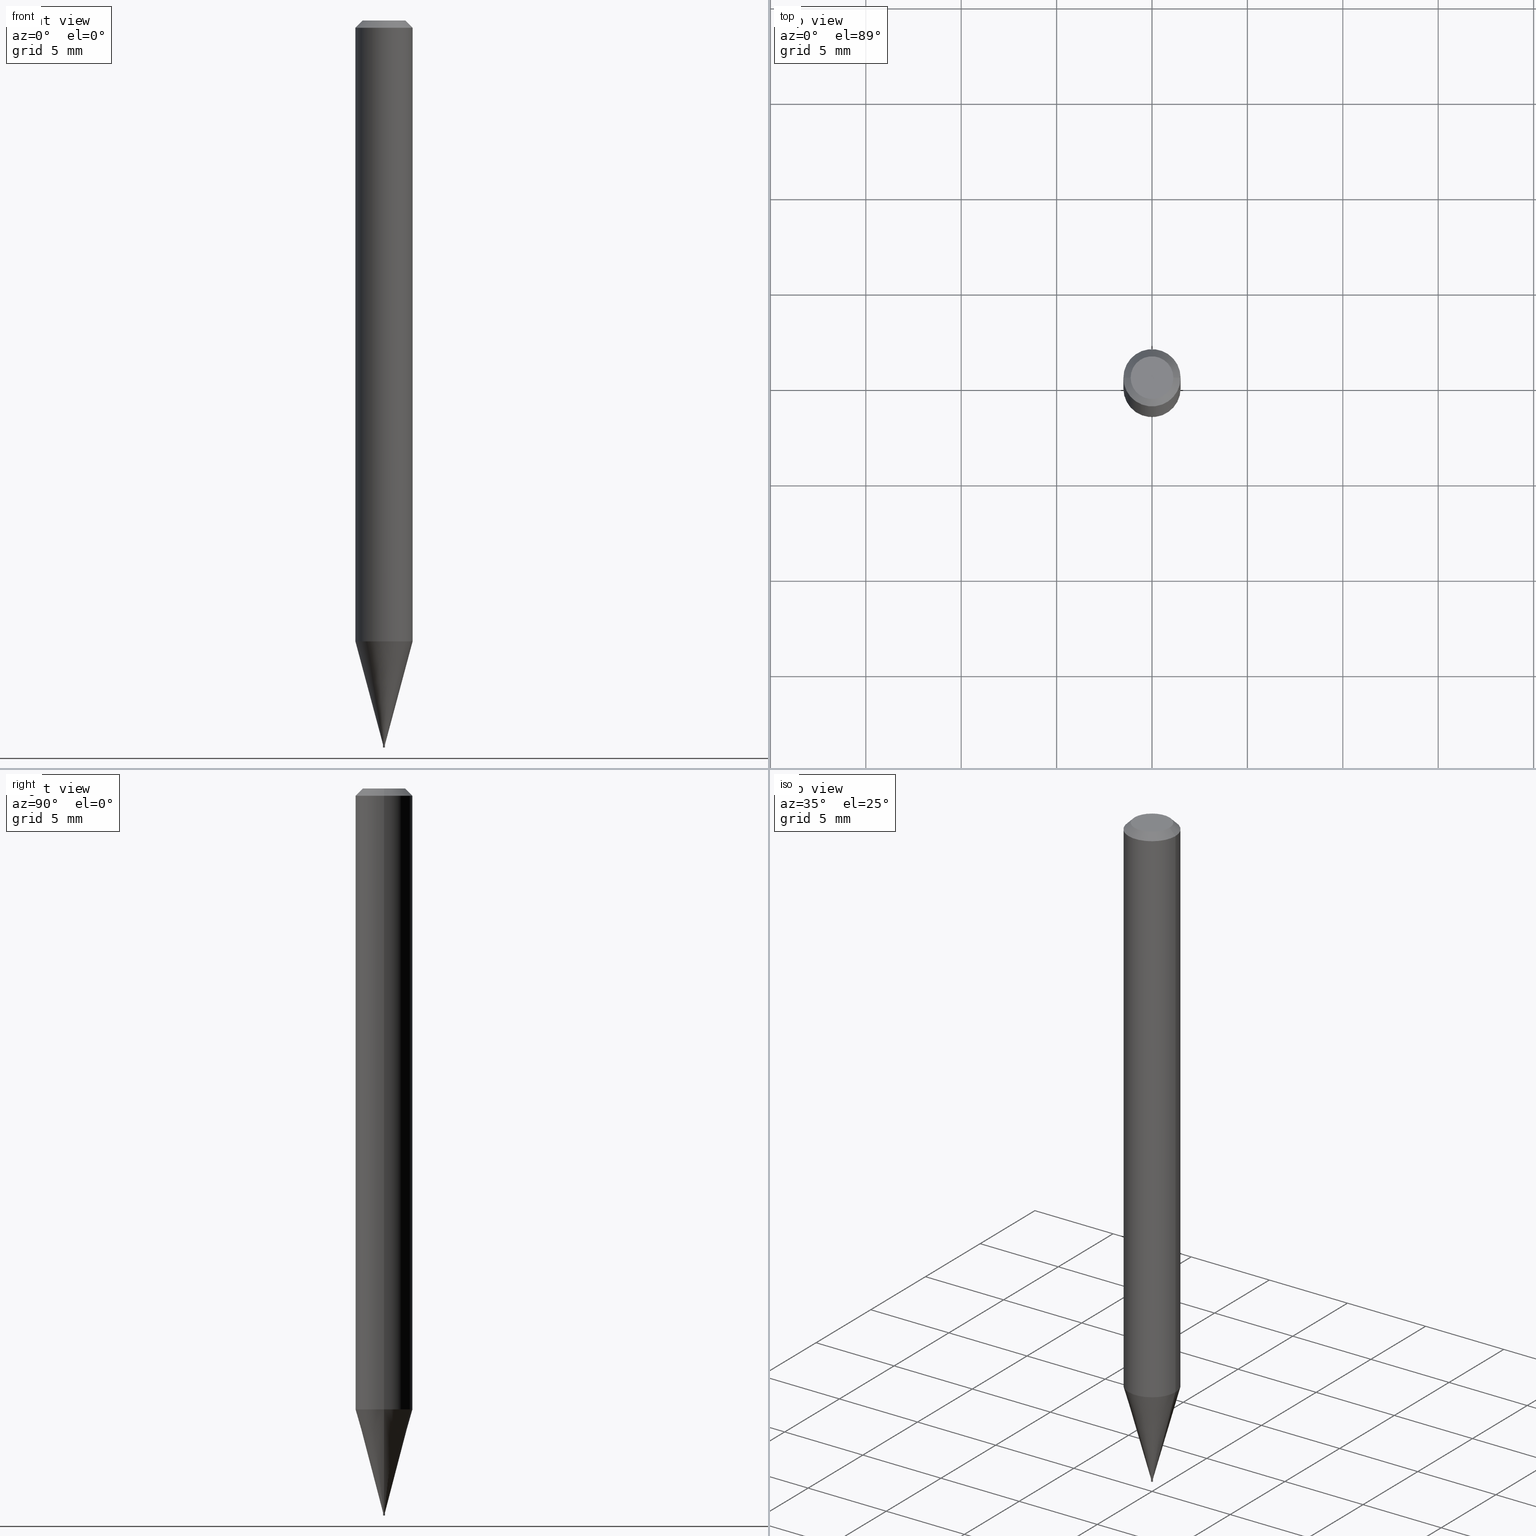
[diagram: canonical four-view strip — front | top / right | iso, engineering-drawing reading convention]
A machine part, canonical four-view strip (front | top / right | iso — engineering-drawing reading convention). The complete STEP part file that produces these views, byte-faithful:
ISO-10303-21;
HEADER;
FILE_DESCRIPTION (( 'STEP AP203' ),
    '1' );
FILE_NAME ('05000.STEP',
    '2024-03-14T17:35:58',
    ( '' ),
    ( '' ),
    'SwSTEP 2.0',
    'SolidWorks 2023',
    '' );
FILE_SCHEMA (( 'CONFIG_CONTROL_DESIGN' ));
ENDSEC;

DATA;
#1 = CYLINDRICAL_SURFACE ( 'NONE', #49, 0.001950000000000004030 ) ;
#2 = VERTEX_POINT ( 'NONE', #371 ) ;
#3 = DIRECTION ( 'NONE',  ( 1.000000000000000000, -6.982962677686144437E-15, 0.000000000000000000 ) ) ;
#4 = EDGE_LOOP ( 'NONE', ( #379, #429 ) ) ;
#5 = AXIS2_PLACEMENT_3D ( 'NONE', #16, #121, #160 ) ;
#6 = LOCAL_TIME ( 13, 35, 58.00000000000000000, #176 ) ;
#7 = ORIENTED_EDGE ( 'NONE', *, *, #382, .T. ) ;
#8 = DIRECTION ( 'NONE',  ( -2.445468806185136597E-29, 3.491481338843145583E-15, 1.000000000000000000 ) ) ;
#9 = CARTESIAN_POINT ( 'NONE',  ( 3.653774943321212865E-29, -5.216622268365544435E-15, -1.494099999999999984 ) ) ;
#10 = ORIENTED_EDGE ( 'NONE', *, *, #336, .T. ) ;
#11 = VECTOR ( 'NONE', #64, 39.37007874015748854 ) ;
#12 = VECTOR ( 'NONE', #301, 39.37007874015748143 ) ;
#13 = MECHANICAL_CONTEXT ( 'NONE', #295, 'mechanical' ) ;
#14 = CARTESIAN_POINT ( 'NONE',  ( 3.653774943321212865E-29, -5.216622268365544435E-15, -1.494099999999999984 ) ) ;
#15 = CARTESIAN_POINT ( 'NONE',  ( 3.132645293456470414E-29, -4.472587242026769909E-15, -1.280999898887817068 ) ) ;
#16 = CARTESIAN_POINT ( 'NONE',  ( 3.653774943321212865E-29, -5.216622268365544435E-15, -1.494099999999999984 ) ) ;
#17 = DIRECTION ( 'NONE',  ( 2.445468806185136597E-29, -3.491481338843145583E-15, -1.000000000000000000 ) ) ;
#18 = CARTESIAN_POINT ( 'NONE',  ( 0.001950000000000004030, -1.361677722148824861E-17, 9.508544712802095894E-32 ) ) ;
#19 = CARTESIAN_POINT ( 'NONE',  ( 3.653774943321212865E-29, -5.216622268365544435E-15, -1.494099999999999984 ) ) ;
#20 = APPROVAL_ROLE ( '' ) ;
#21 = AXIS2_PLACEMENT_3D ( 'NONE', #169, #374, #341 ) ;
#22 = EDGE_CURVE ( 'NONE', #191, #79, #316, .T. ) ;
#23 = EDGE_LOOP ( 'NONE', ( #420, #352, #355, #398 ) ) ;
#24 = PERSON_AND_ORGANIZATION ( #100, #305 ) ;
#25 = CARTESIAN_POINT ( 'NONE',  ( 0.000000000000000000, 0.000000000000000000, 0.000000000000000000 ) ) ;
#26 = CARTESIAN_POINT ( 'NONE',  ( 3.075995059520799729E-16, 0.04404999999999999888, 5.390572357118808327E-16 ) ) ;
#27 = CARTESIAN_POINT ( 'NONE',  ( 3.576687321579069994E-29, -5.368277968210015545E-15, -1.500000000000000222 ) ) ;
#28 = DIRECTION ( 'NONE',  ( -2.445468806185136597E-29, 3.491481338843145583E-15, 1.000000000000000000 ) ) ;
#29 = DIRECTION ( 'NONE',  ( 0.2588190451025210725, 1.565188264969624137E-15, 0.9659258262890682012 ) ) ;
#30 = DIRECTION ( 'NONE',  ( 1.000000000000000000, -6.982962677686419750E-15, 0.000000000000000000 ) ) ;
#31 = PERSON_AND_ORGANIZATION_ROLE ( 'classification_officer' ) ;
#32 = AXIS2_PLACEMENT_3D ( 'NONE', #440, #403, #30 ) ;
#33 = VERTEX_POINT ( 'NONE', #376 ) ;
#34 = CIRCLE ( 'NONE', #63, 0.001949999999999927269 ) ;
#35 = EDGE_CURVE ( 'NONE', #2, #332, #83, .T. ) ;
#36 = CYLINDRICAL_SURFACE ( 'NONE', #284, 0.001949999999999926835 ) ;
#37 = CALENDAR_DATE ( 2024, 14, 3 ) ;
#38 = CARTESIAN_POINT ( 'NONE',  ( 3.132645293456470414E-29, -4.472587242026769909E-15, -1.280999898887817068 ) ) ;
#39 = PERSON_AND_ORGANIZATION_ROLE ( 'design_owner' ) ;
#40 = CIRCLE ( 'NONE', #255, 0.05904999999999999832 ) ;
#41 = ADVANCED_FACE ( 'NONE', ( #53 ), #162, .F. ) ;
#42 = EDGE_CURVE ( 'NONE', #189, #252, #188, .T. ) ;
#43 = ORIENTED_EDGE ( 'NONE', *, *, #194, .T. ) ;
#44 = DIRECTION ( 'NONE',  ( 1.000000000000000000, -6.982962677686265922E-15, 4.957392940945096353E-29 ) ) ;
#45 = COORDINATED_UNIVERSAL_TIME_OFFSET ( 5, 0, .BEHIND. ) ;
#46 = DIRECTION ( 'NONE',  ( -2.445468806185136597E-29, 3.491481338843145583E-15, 1.000000000000000000 ) ) ;
#47 = ORIENTED_EDGE ( 'NONE', *, *, #151, .F. ) ;
#48 = DIRECTION ( 'NONE',  ( -1.000000000000000000, 6.982962677686266711E-15, 0.000000000000000000 ) ) ;
#49 = AXIS2_PLACEMENT_3D ( 'NONE', #25, #65, #124 ) ;
#50 = CIRCLE ( 'NONE', #464, 0.001450000000000002719 ) ;
#51 = DIRECTION ( 'NONE',  ( 1.000000000000000000, -6.982962677686144437E-15, 0.000000000000000000 ) ) ;
#52 = EDGE_CURVE ( 'NONE', #287, #362, #387, .T. ) ;
#53 = FACE_OUTER_BOUND ( 'NONE', #4, .T. ) ;
#54 = VERTEX_POINT ( 'NONE', #73 ) ;
#55 = ADVANCED_FACE ( 'NONE', ( #288 ), #215, .F. ) ;
#56 = AXIS2_PLACEMENT_3D ( 'NONE', #85, #122, #228 ) ;
#57 = PERSON_AND_ORGANIZATION_ROLE ( 'creator' ) ;
#58 = ORIENTED_EDGE ( 'NONE', *, *, #378, .F. ) ;
#59 = DIRECTION ( 'NONE',  ( -2.445468806185136597E-29, 3.491481338843145583E-15, 1.000000000000000000 ) ) ;
#60 = ORIENTED_EDGE ( 'NONE', *, *, #35, .F. ) ;
#61 = PLANE ( 'NONE',  #405 ) ;
#62 = CLOSED_SHELL ( 'NONE', ( #286, #235, #113, #154 ) ) ;
#63 = AXIS2_PLACEMENT_3D ( 'NONE', #179, #465, #422 ) ;
#64 = DIRECTION ( 'NONE',  ( 0.7071067811865647812, -2.468850131082438104E-15, 0.7071067811865301422 ) ) ;
#65 = DIRECTION ( 'NONE',  ( -2.445468806185136597E-29, 3.491481338843145583E-15, 1.000000000000000000 ) ) ;
#66 = CC_DESIGN_PERSON_AND_ORGANIZATION_ASSIGNMENT ( #239, #31, ( #357 ) ) ;
#67 = EDGE_CURVE ( 'NONE', #191, #252, #275, .T. ) ;
#68 = VERTEX_POINT ( 'NONE', #126 ) ;
#69 = APPROVAL_STATUS ( 'not_yet_approved' ) ;
#70 = ORIENTED_EDGE ( 'NONE', *, *, #466, .T. ) ;
#71 = APPLICATION_PROTOCOL_DEFINITION ( 'international standard', 'config_control_design', 1994, #295 ) ;
#72 = VERTEX_POINT ( 'NONE', #88 ) ;
#73 = CARTESIAN_POINT ( 'NONE',  ( 0.05905000000000000526, -4.884931188144144829E-15, -1.280999898887817068 ) ) ;
#74 = ORIENTED_EDGE ( 'NONE', *, *, #280, .T. ) ;
#75 = CARTESIAN_POINT ( 'NONE',  ( 3.668203209277705088E-31, -5.237222008264718399E-17, -0.01499999999999999944 ) ) ;
#76 = ORIENTED_EDGE ( 'NONE', *, *, #407, .F. ) ;
#77 = PERSON_AND_ORGANIZATION ( #100, #305 ) ;
#78 = APPROVAL_PERSON_ORGANIZATION ( #211, #173, #348 ) ;
#79 = VERTEX_POINT ( 'NONE', #230 ) ;
#80 = EDGE_CURVE ( 'NONE', #252, #343, #123, .T. ) ;
#81 = ADVANCED_FACE ( 'NONE', ( #130 ), #208, .T. ) ;
#82 = APPLICATION_PROTOCOL_DEFINITION ( 'international standard', 'config_control_design', 1994, #447 ) ;
#83 = CIRCLE ( 'NONE', #241, 0.001950000000000004030 ) ;
#84 = CARTESIAN_POINT ( 'NONE',  ( 3.653774943321212865E-29, -5.216622268365544435E-15, -1.494099999999999984 ) ) ;
#85 = CARTESIAN_POINT ( 'NONE',  ( -3.388720305967359121E-44, 4.838194492981867643E-30, 1.385713977375842822E-15 ) ) ;
#86 = CC_DESIGN_PERSON_AND_ORGANIZATION_ASSIGNMENT ( #340, #57, ( #415 ) ) ;
#87 = FACE_OUTER_BOUND ( 'NONE', #333, .T. ) ;
#88 = CARTESIAN_POINT ( 'NONE',  ( -0.001450000000000002719, -5.203670171522912127E-15, -1.494099999999999984 ) ) ;
#89 = DIRECTION ( 'NONE',  ( 1.000000000000000000, -6.982962677686265922E-15, 4.876176775795935793E-29 ) ) ;
#90 = ORIENTED_EDGE ( 'NONE', *, *, #52, .T. ) ;
#91 = DIRECTION ( 'NONE',  ( -2.445468806185136877E-29, 3.491481338843145188E-15, 1.000000000000000000 ) ) ;
#92 = CARTESIAN_POINT ( 'NONE',  ( 1.361677722152478581E-17, 0.001949999999994787500, -1.494099999999999984 ) ) ;
#93 = COORDINATED_UNIVERSAL_TIME_OFFSET ( 5, 0, .BEHIND. ) ;
#94 = DIRECTION ( 'NONE',  ( 1.000000000000000000, -6.982962677686419750E-15, 0.000000000000000000 ) ) ;
#95 = CARTESIAN_POINT ( 'NONE',  ( -0.04404999999999999888, 3.337856159934058298E-16, 1.385713977375840652E-15 ) ) ;
#96 = FACE_OUTER_BOUND ( 'NONE', #383, .T. ) ;
#97 = APPROVAL_DATE_TIME ( #206, #111 ) ;
#98 = DESIGN_CONTEXT ( 'detailed design', #447, 'design' ) ;
#99 = LINE ( 'NONE', #18, #243 ) ;
#100 = PERSON ( 'UNSPECIFIED', 'UNSPECIFIED', 'UNSPECIFIED', ('UNSPECIFIED'), ('UNSPECIFIED'), ('UNSPECIFIED') ) ;
#101 = VECTOR ( 'NONE', #353, 39.37007874015748143 ) ;
#102 = DATE_TIME_ROLE ( 'creation_date' ) ;
#103 = FACE_OUTER_BOUND ( 'NONE', #258, .T. ) ;
#104 = APPROVAL_PERSON_ORGANIZATION ( #328, #260, #20 ) ;
#105 = DIMENSIONAL_EXPONENTS ( 1.000000000000000000, 0.000000000000000000, 0.000000000000000000, 0.000000000000000000, 0.000000000000000000, 0.000000000000000000, 0.000000000000000000 ) ;
#106 = ADVANCED_FACE ( 'NONE', ( #310 ), #337, .T. ) ;
#107 = ORIENTED_EDGE ( 'NONE', *, *, #382, .F. ) ;
#108 = EDGE_LOOP ( 'NONE', ( #254, #90, #369, #358 ) ) ;
#109 = CYLINDRICAL_SURFACE ( 'NONE', #361, 0.001950000000000004030 ) ;
#110 = VECTOR ( 'NONE', #192, 39.37007874015748143 ) ;
#111 = APPROVAL ( #69, 'UNSPECIFIED' ) ;
#112 = LOCAL_TIME ( 13, 35, 58.00000000000000000, #320 ) ;
#113 = ADVANCED_FACE ( 'NONE', ( #227 ), #1, .T. ) ;
#114 = CARTESIAN_POINT ( 'NONE',  ( 3.668203209277704895E-29, -5.237222008264718177E-15, -1.500000000000000222 ) ) ;
#115 = ORIENTED_EDGE ( 'NONE', *, *, #196, .F. ) ;
#116 = DIRECTION ( 'NONE',  ( -2.445468806185136877E-29, 3.491481338843145188E-15, 1.000000000000000000 ) ) ;
#117 = ORIENTED_EDGE ( 'NONE', *, *, #359, .F. ) ;
#118 = AXIS2_PLACEMENT_3D ( 'NONE', #114, #232, #3 ) ;
#119 = FACE_OUTER_BOUND ( 'NONE', #399, .T. ) ;
#120 = DIRECTION ( 'NONE',  ( -2.445468806185136597E-29, 3.491481338843145583E-15, 1.000000000000000000 ) ) ;
#121 = DIRECTION ( 'NONE',  ( -2.445468806185136597E-29, 3.491481338843145583E-15, 1.000000000000000000 ) ) ;
#122 = DIRECTION ( 'NONE',  ( -2.445468806185136597E-29, 3.491481338843145583E-15, 1.000000000000000000 ) ) ;
#123 = CIRCLE ( 'NONE', #395, 0.05904999999999999832 ) ;
#124 = DIRECTION ( 'NONE',  ( 1.000000000000000000, -6.982962677686266711E-15, 4.876176775795936353E-29 ) ) ;
#125 = FACE_OUTER_BOUND ( 'NONE', #262, .T. ) ;
#126 = CARTESIAN_POINT ( 'NONE',  ( 0.001949999999999926185, -5.228493304917610659E-15, -1.493600000000000261 ) ) ;
#127 = CARTESIAN_POINT ( 'NONE',  ( 3.653774943321212865E-29, -5.216622268365544435E-15, -1.494099999999999984 ) ) ;
#128 = DIRECTION ( 'NONE',  ( -2.445468806185136597E-29, 3.491481338843145583E-15, 1.000000000000000000 ) ) ;
#129 = DIRECTION ( 'NONE',  ( 1.000000000000000000, -6.982962677686418961E-15, 0.000000000000000000 ) ) ;
#130 = FACE_OUTER_BOUND ( 'NONE', #23, .T. ) ;
#131 = ORIENTED_EDGE ( 'NONE', *, *, #22, .T. ) ;
#132 = ADVANCED_BREP_SHAPE_REPRESENTATION ( '05000', ( #157, #313, #156 ), #306 ) ;
#133 = CIRCLE ( 'NONE', #372, 0.001950000000000004030 ) ;
#134 = EDGE_CURVE ( 'NONE', #33, #167, #345, .T. ) ;
#135 = AXIS2_PLACEMENT_3D ( 'NONE', #15, #120, #229 ) ;
#136 = ORIENTED_EDGE ( 'NONE', *, *, #452, .F. ) ;
#137 = APPROVAL_ROLE ( '' ) ;
#138 = AXIS2_PLACEMENT_3D ( 'NONE', #19, #272, #411 ) ;
#139 = ORIENTED_EDGE ( 'NONE', *, *, #134, .T. ) ;
#140 = EDGE_LOOP ( 'NONE', ( #246, #152, #416, #10 ) ) ;
#141 = CARTESIAN_POINT ( 'NONE',  ( -3.388720305967359121E-44, 4.838194492981867643E-30, 1.385713977375842822E-15 ) ) ;
#142 = ORIENTED_EDGE ( 'NONE', *, *, #326, .F. ) ;
#143 = DIRECTION ( 'NONE',  ( 1.000000000000000000, -6.982962677686422905E-15, 0.000000000000000000 ) ) ;
#144 = AXIS2_PLACEMENT_3D ( 'NONE', #203, #59, #197 ) ;
#145 = CIRCLE ( 'NONE', #135, 0.05904999999999999832 ) ;
#146 = CC_DESIGN_PERSON_AND_ORGANIZATION_ASSIGNMENT ( #257, #384, ( #415 ) ) ;
#147 = CARTESIAN_POINT ( 'NONE',  ( -0.05904999999999999832, 4.195754854663391478E-16, -2.904631170795521892E-30 ) ) ;
#148 = ORIENTED_EDGE ( 'NONE', *, *, #35, .T. ) ;
#149 = LENGTH_MEASURE_WITH_UNIT ( LENGTH_MEASURE( 0.02539999999999999897 ), #318 );
#150 = DIRECTION ( 'NONE',  ( 1.000000000000000000, -6.982962677686266711E-15, 0.000000000000000000 ) ) ;
#151 = EDGE_CURVE ( 'NONE', #362, #287, #370, .T. ) ;
#152 = ORIENTED_EDGE ( 'NONE', *, *, #134, .F. ) ;
#153 = APPROVAL_STATUS ( 'not_yet_approved' ) ;
#154 = ADVANCED_FACE ( 'NONE', ( #87 ), #347, .F. ) ;
#155 = CLOSED_SHELL ( 'NONE', ( #55, #81, #236, #163, #106, #413, #202, #323, #443, #41, #279, #248 ) ) ;
#156 = AXIS2_PLACEMENT_3D ( 'NONE', #394, #360, #433 ) ;
#157 = MANIFOLD_SOLID_BREP ( 'Body-Move/Copy2[1]', #62 ) ;
#158 = CALENDAR_DATE ( 2024, 14, 3 ) ;
#159 = CARTESIAN_POINT ( 'NONE',  ( 3.652552208918120063E-29, -5.214876527696122931E-15, -1.493600000000000261 ) ) ;
#160 = DIRECTION ( 'NONE',  ( 1.000000000000000000, -6.982962677686419750E-15, 0.000000000000000000 ) ) ;
#161 = ORIENTED_EDGE ( 'NONE', *, *, #466, .F. ) ;
#162 = PLANE ( 'NONE',  #324 ) ;
#163 = ADVANCED_FACE ( 'NONE', ( #265 ), #300, .T. ) ;
#164 = AXIS2_PLACEMENT_3D ( 'NONE', #27, #458, #315 ) ;
#165 = DIRECTION ( 'NONE',  ( 1.000000000000000000, -6.982962677686422905E-15, 0.000000000000000000 ) ) ;
#166 = DIRECTION ( 'NONE',  ( -2.445468806185136597E-29, 3.491481338843145583E-15, 1.000000000000000000 ) ) ;
#167 = VERTEX_POINT ( 'NONE', #344 ) ;
#168 = LINE ( 'NONE', #276, #242 ) ;
#169 = CARTESIAN_POINT ( 'NONE',  ( 3.668203209277704895E-29, -5.237222008264718177E-15, -1.500000000000000222 ) ) ;
#170 = DIRECTION ( 'NONE',  ( 2.438088387897960049E-29, -3.491481338843145188E-15, -1.000000000000000000 ) ) ;
#171 = AXIS2_PLACEMENT_3D ( 'NONE', #14, #270, #444 ) ;
#172 = AXIS2_PLACEMENT_3D ( 'NONE', #141, #363, #44 ) ;
#173 = APPROVAL ( #424, 'UNSPECIFIED' ) ;
#174 = ORIENTED_EDGE ( 'NONE', *, *, #234, .T. ) ;
#175 = CARTESIAN_POINT ( 'NONE',  ( 0.000000000000000000, 0.000000000000000000, 0.000000000000000000 ) ) ;
#176 = COORDINATED_UNIVERSAL_TIME_OFFSET ( 5, 0, .BEHIND. ) ;
#177 = ORIENTED_EDGE ( 'NONE', *, *, #463, .T. ) ;
#178 = VECTOR ( 'NONE', #412, 39.37007874015748143 ) ;
#179 = CARTESIAN_POINT ( 'NONE',  ( 3.653774943321212865E-29, -5.216622268365544435E-15, -1.494099999999999984 ) ) ;
#180 = CALENDAR_DATE ( 2024, 14, 3 ) ;
#181 = DIRECTION ( 'NONE',  ( 1.000000000000000000, -6.982962677686144437E-15, 0.000000000000000000 ) ) ;
#182 = DIRECTION ( 'NONE',  ( -2.445468806185136597E-29, 3.491481338843145583E-15, 1.000000000000000000 ) ) ;
#183 = ORIENTED_EDGE ( 'NONE', *, *, #214, .F. ) ;
#184 = EDGE_LOOP ( 'NONE', ( #281, #402, #436, #435 ) ) ;
#185 = CARTESIAN_POINT ( 'NONE',  ( -0.001949999999999926835, 1.385558334732143376E-17, -9.591923425996705433E-32 ) ) ;
#186 = CARTESIAN_POINT ( 'NONE',  ( 3.668203209277705088E-31, -5.237222008264718399E-17, -0.01499999999999999944 ) ) ;
#187 = CC_DESIGN_APPROVAL ( #173, ( #415 ) ) ;
#188 = LINE ( 'NONE', #147, #110 ) ;
#189 = VERTEX_POINT ( 'NONE', #456 ) ;
#190 = EDGE_CURVE ( 'NONE', #446, #72, #448, .T. ) ;
#191 = VERTEX_POINT ( 'NONE', #95 ) ;
#192 = DIRECTION ( 'NONE',  ( -2.445468806185136877E-29, 3.491481338843145188E-15, 1.000000000000000000 ) ) ;
#193 = CARTESIAN_POINT ( 'NONE',  ( -0.05904999999999999832, -1.842904245588369593E-15, -0.01499999999999999944 ) ) ;
#194 = EDGE_CURVE ( 'NONE', #332, #2, #133, .T. ) ;
#195 = EDGE_CURVE ( 'NONE', #446, #68, #290, .T. ) ;
#196 = EDGE_CURVE ( 'NONE', #54, #343, #168, .T. ) ;
#197 = DIRECTION ( 'NONE',  ( 1.000000000000000000, -6.982962677686266711E-15, 4.876176775795936353E-29 ) ) ;
#198 = CARTESIAN_POINT ( 'NONE',  ( 3.668203209277705088E-31, -5.237222008264718399E-17, -0.01499999999999999944 ) ) ;
#199 = AXIS2_PLACEMENT_3D ( 'NONE', #460, #17, #386 ) ;
#200 = LOCAL_TIME ( 13, 35, 58.00000000000000000, #261 ) ;
#201 = LINE ( 'NONE', #349, #101 ) ;
#202 = ADVANCED_FACE ( 'NONE', ( #304 ), #409, .T. ) ;
#203 = CARTESIAN_POINT ( 'NONE',  ( 0.000000000000000000, 0.000000000000000000, 0.000000000000000000 ) ) ;
#204 = CARTESIAN_POINT ( 'NONE',  ( 0.000000000000000000, 0.000000000000000000, 0.000000000000000000 ) ) ;
#205 = SECURITY_CLASSIFICATION_LEVEL ( 'unclassified' ) ;
#206 = DATE_AND_TIME ( #180, #112 ) ;
#207 = CC_DESIGN_DATE_AND_TIME_ASSIGNMENT ( #418, #102, ( #312 ) ) ;
#208 = CONICAL_SURFACE ( 'NONE', #5, 0.001450000000000002719, 0.7853981633974728149 ) ;
#209 = LOCAL_TIME ( 13, 35, 58.00000000000000000, #93 ) ;
#210 = FACE_OUTER_BOUND ( 'NONE', #140, .T. ) ;
#211 = PERSON_AND_ORGANIZATION ( #100, #305 ) ;
#212 = ORIENTED_EDGE ( 'NONE', *, *, #67, .F. ) ;
#213 = AXIS2_PLACEMENT_3D ( 'NONE', #92, #309, #381 ) ;
#214 = EDGE_CURVE ( 'NONE', #72, #293, #410, .T. ) ;
#215 = CYLINDRICAL_SURFACE ( 'NONE', #404, 0.001949999999999926835 ) ;
#216 = ORIENTED_EDGE ( 'NONE', *, *, #219, .T. ) ;
#217 = ORIENTED_EDGE ( 'NONE', *, *, #195, .T. ) ;
#218 = EDGE_LOOP ( 'NONE', ( #74, #454, #142, #115 ) ) ;
#219 = EDGE_CURVE ( 'NONE', #72, #446, #50, .T. ) ;
#220 = ORIENTED_EDGE ( 'NONE', *, *, #67, .T. ) ;
#221 = DATE_AND_TIME ( #158, #200 ) ;
#222 = DATE_AND_TIME ( #375, #209 ) ;
#223 = CC_DESIGN_PERSON_AND_ORGANIZATION_ASSIGNMENT ( #24, #238, ( #312 ) ) ;
#224 = CONICAL_SURFACE ( 'NONE', #356, 0.05904999999999999832, 0.7853981633974022047 ) ;
#225 = AXIS2_PLACEMENT_3D ( 'NONE', #159, #269, #165 ) ;
#226 =( NAMED_UNIT ( * ) SI_UNIT ( $, .STERADIAN. ) SOLID_ANGLE_UNIT ( ) );
#227 = FACE_OUTER_BOUND ( 'NONE', #108, .T. ) ;
#228 = DIRECTION ( 'NONE',  ( 1.000000000000000000, -6.982962677686265922E-15, 4.957392940945096353E-29 ) ) ;
#229 = DIRECTION ( 'NONE',  ( 1.000000000000000000, -6.982962677686273021E-15, 0.000000000000000000 ) ) ;
#230 = CARTESIAN_POINT ( 'NONE',  ( 0.04404999999999999888, -3.798447818264435920E-16, 1.385713977375845188E-15 ) ) ;
#231 = CARTESIAN_POINT ( 'NONE',  ( -0.001949999999999927269, -5.202766685018222429E-15, -1.494099999999999984 ) ) ;
#232 = DIRECTION ( 'NONE',  ( -2.445468806185136597E-29, 3.491481338843145583E-15, 1.000000000000000000 ) ) ;
#233 = ORIENTED_EDGE ( 'NONE', *, *, #326, .T. ) ;
#234 = EDGE_CURVE ( 'NONE', #287, #332, #201, .T. ) ;
#235 = ADVANCED_FACE ( 'NONE', ( #96 ), #268, .F. ) ;
#236 = ADVANCED_FACE ( 'NONE', ( #237 ), #400, .T. ) ;
#237 = FACE_OUTER_BOUND ( 'NONE', #425, .T. ) ;
#238 = PERSON_AND_ORGANIZATION_ROLE ( 'creator' ) ;
#239 = PERSON_AND_ORGANIZATION ( #100, #305 ) ;
#240 = SHAPE_DEFINITION_REPRESENTATION ( #282, #132 ) ;
#241 = AXIS2_PLACEMENT_3D ( 'NONE', #9, #368, #51 ) ;
#242 = VECTOR ( 'NONE', #91, 39.37007874015748143 ) ;
#243 = VECTOR ( 'NONE', #302, 39.37007874015748143 ) ;
#244 = EDGE_LOOP ( 'NONE', ( #428, #334, #393, #319 ) ) ;
#245 = CARTESIAN_POINT ( 'NONE',  ( 0.05904999999999999832, -4.574846268510561447E-16, -0.01499999999999999944 ) ) ;
#246 = ORIENTED_EDGE ( 'NONE', *, *, #250, .F. ) ;
#247 = DIRECTION ( 'NONE',  ( 0.7071067811865149322, -7.319954787623147183E-15, -0.7071067811865801023 ) ) ;
#248 = ADVANCED_FACE ( 'NONE', ( #210 ), #36, .F. ) ;
#249 = ORIENTED_EDGE ( 'NONE', *, *, #52, .F. ) ;
#250 = EDGE_CURVE ( 'NONE', #167, #293, #259, .T. ) ;
#251 = DIRECTION ( 'NONE',  ( -2.445468806185136597E-29, 3.491481338843145583E-15, 1.000000000000000000 ) ) ;
#252 = VERTEX_POINT ( 'NONE', #193 ) ;
#253 = CARTESIAN_POINT ( 'NONE',  ( -0.001950000000000004030, -5.213066554967809695E-15, -1.500000000000000222 ) ) ;
#254 = ORIENTED_EDGE ( 'NONE', *, *, #234, .F. ) ;
#255 = AXIS2_PLACEMENT_3D ( 'NONE', #38, #251, #350 ) ;
#256 = CARTESIAN_POINT ( 'NONE',  ( 0.000000000000000000, 0.000000000000000000, 0.000000000000000000 ) ) ;
#257 = PERSON_AND_ORGANIZATION ( #100, #305 ) ;
#258 = EDGE_LOOP ( 'NONE', ( #388, #174, #60, #58 ) ) ;
#259 = LINE ( 'NONE', #185, #427 ) ;
#260 = APPROVAL ( #153, 'UNSPECIFIED' ) ;
#261 = COORDINATED_UNIVERSAL_TIME_OFFSET ( 5, 0, .BEHIND. ) ;
#262 = EDGE_LOOP ( 'NONE', ( #107, #177, #327, #76 ) ) ;
#263 = AXIS2_PLACEMENT_3D ( 'NONE', #186, #331, #150 ) ;
#264 = CC_DESIGN_SECURITY_CLASSIFICATION ( #357, ( #415 ) ) ;
#265 = FACE_OUTER_BOUND ( 'NONE', #218, .T. ) ;
#266 = CARTESIAN_POINT ( 'NONE',  ( 3.653774943321212865E-29, -5.216622268365544435E-15, -1.494099999999999984 ) ) ;
#267 = LINE ( 'NONE', #231, #12 ) ;
#268 = PLANE ( 'NONE',  #164 ) ;
#269 = DIRECTION ( 'NONE',  ( -2.445468806185136597E-29, 3.491481338843145583E-15, 1.000000000000000000 ) ) ;
#270 = DIRECTION ( 'NONE',  ( -2.445468806185136597E-29, 3.491481338843145583E-15, 1.000000000000000000 ) ) ;
#271 = DIRECTION ( 'NONE',  ( -0.7071067811865647812, 7.493145998870415691E-15, 0.7071067811865301422 ) ) ;
#272 = DIRECTION ( 'NONE',  ( -2.445468806185136597E-29, 3.491481338843145583E-15, 1.000000000000000000 ) ) ;
#273 = EDGE_CURVE ( 'NONE', #33, #68, #437, .T. ) ;
#274 = CALENDAR_DATE ( 2024, 14, 3 ) ;
#275 = LINE ( 'NONE', #377, #178 ) ;
#276 = CARTESIAN_POINT ( 'NONE',  ( 0.05904999999999999832, -4.123439461173740327E-16, 2.879382386107500220E-30 ) ) ;
#277 = VECTOR ( 'NONE', #116, 39.37007874015748143 ) ;
#278 = CIRCLE ( 'NONE', #172, 0.04404999999999999888 ) ;
#279 = ADVANCED_FACE ( 'NONE', ( #119 ), #421, .T. ) ;
#280 = EDGE_CURVE ( 'NONE', #54, #189, #40, .T. ) ;
#281 = ORIENTED_EDGE ( 'NONE', *, *, #42, .F. ) ;
#282 = PRODUCT_DEFINITION_SHAPE ( 'NONE', 'NONE',  #312 ) ;
#283 = LINE ( 'NONE', #245, #430 ) ;
#284 = AXIS2_PLACEMENT_3D ( 'NONE', #175, #292, #291 ) ;
#285 = VECTOR ( 'NONE', #29, 39.37007874015748143 ) ;
#286 = ADVANCED_FACE ( 'NONE', ( #103 ), #109, .T. ) ;
#287 = VERTEX_POINT ( 'NONE', #253 ) ;
#288 = FACE_OUTER_BOUND ( 'NONE', #244, .T. ) ;
#289 = LOCAL_TIME ( 13, 35, 58.00000000000000000, #45 ) ;
#290 = LINE ( 'NONE', #311, #11 ) ;
#291 = DIRECTION ( 'NONE',  ( 1.000000000000000000, -6.982962677686265922E-15, 4.876176775795935232E-29 ) ) ;
#292 = DIRECTION ( 'NONE',  ( -2.445468806185136597E-29, 3.491481338843145583E-15, 1.000000000000000000 ) ) ;
#293 = VERTEX_POINT ( 'NONE', #426 ) ;
#294 = CC_DESIGN_PERSON_AND_ORGANIZATION_ASSIGNMENT ( #77, #39, ( #354 ) ) ;
#295 = APPLICATION_CONTEXT ( 'configuration controlled 3d designs of mechanical parts and assemblies' ) ;
#296 = VECTOR ( 'NONE', #271, 39.37007874015748854 ) ;
#297 = APPROVAL_DATE_TIME ( #221, #173 ) ;
#298 = FACE_OUTER_BOUND ( 'NONE', #462, .T. ) ;
#299 = DIRECTION ( 'NONE',  ( -2.445468806185136597E-29, 3.491481338843145583E-15, 1.000000000000000000 ) ) ;
#300 = CYLINDRICAL_SURFACE ( 'NONE', #144, 0.05904999999999999832 ) ;
#301 = DIRECTION ( 'NONE',  ( -0.2588190451025210725, 5.211531920934548675E-15, 0.9659258262890682012 ) ) ;
#302 = DIRECTION ( 'NONE',  ( -2.445468806185136877E-29, 3.491481338843145188E-15, 1.000000000000000000 ) ) ;
#303 = AXIS2_PLACEMENT_3D ( 'NONE', #84, #299, #445 ) ;
#304 = FACE_OUTER_BOUND ( 'NONE', #184, .T. ) ;
#305 = ORGANIZATION ( 'UNSPECIFIED', 'UNSPECIFIED', '' ) ;
#306 =( GEOMETRIC_REPRESENTATION_CONTEXT ( 3 ) GLOBAL_UNCERTAINTY_ASSIGNED_CONTEXT ( ( #434 ) ) GLOBAL_UNIT_ASSIGNED_CONTEXT ( ( #438, #308, #226 ) ) REPRESENTATION_CONTEXT ( 'NONE', 'WORKASPACE' ) );
#307 = DIRECTION ( 'NONE',  ( -2.445468806185136597E-29, 3.491481338843145583E-15, 1.000000000000000000 ) ) ;
#308 =( NAMED_UNIT ( * ) PLANE_ANGLE_UNIT ( ) SI_UNIT ( $, .RADIAN. ) );
#309 = DIRECTION ( 'NONE',  ( 2.438088387897960049E-29, -3.491481338843145188E-15, -1.000000000000000000 ) ) ;
#310 = FACE_OUTER_BOUND ( 'NONE', #385, .T. ) ;
#311 = CARTESIAN_POINT ( 'NONE',  ( 0.001450000000000002719, -5.226747564248189155E-15, -1.494099999999999984 ) ) ;
#312 = PRODUCT_DEFINITION ( 'UNKNOWN', '', #415, #98 ) ;
#313 = MANIFOLD_SOLID_BREP ( 'Body-Move/Copy2[2]', #155 ) ;
#314 = ORIENTED_EDGE ( 'NONE', *, *, #22, .F. ) ;
#315 = DIRECTION ( 'NONE',  ( 1.000000000000000000, -6.982962677686265922E-15, 4.876176775795935793E-29 ) ) ;
#316 = CIRCLE ( 'NONE', #56, 0.04404999999999999888 ) ;
#317 = ORIENTED_EDGE ( 'NONE', *, *, #365, .F. ) ;
#318 =( LENGTH_UNIT ( ) NAMED_UNIT ( * ) SI_UNIT ( $, .METRE. ) );
#319 = ORIENTED_EDGE ( 'NONE', *, *, #273, .F. ) ;
#320 = COORDINATED_UNIVERSAL_TIME_OFFSET ( 5, 0, .BEHIND. ) ;
#321 = CARTESIAN_POINT ( 'NONE',  ( 0.05904999999999999832, -4.647161662000212105E-16, -0.01499999999999999944 ) ) ;
#322 = ORIENTED_EDGE ( 'NONE', *, *, #80, .T. ) ;
#323 = ADVANCED_FACE ( 'NONE', ( #397 ), #224, .T. ) ;
#324 = AXIS2_PLACEMENT_3D ( 'NONE', #127, #408, #89 ) ;
#325 = DIRECTION ( 'NONE',  ( 1.000000000000000000, -6.982962677686266711E-15, 4.876176775795936353E-29 ) ) ;
#326 = EDGE_CURVE ( 'NONE', #343, #252, #459, .T. ) ;
#327 = ORIENTED_EDGE ( 'NONE', *, *, #365, .T. ) ;
#328 = PERSON_AND_ORGANIZATION ( #100, #305 ) ;
#329 = CIRCLE ( 'NONE', #449, 0.001949999999999926185 ) ;
#330 = APPROVAL_PERSON_ORGANIZATION ( #417, #111, #137 ) ;
#331 = DIRECTION ( 'NONE',  ( -2.445468806185136597E-29, 3.491481338843145583E-15, 1.000000000000000000 ) ) ;
#332 = VERTEX_POINT ( 'NONE', #432 ) ;
#333 = EDGE_LOOP ( 'NONE', ( #148, #43 ) ) ;
#334 = ORIENTED_EDGE ( 'NONE', *, *, #250, .T. ) ;
#335 = CARTESIAN_POINT ( 'NONE',  ( 0.001949999999999926835, -1.361677722148770781E-17, 9.508544712801717106E-32 ) ) ;
#336 = EDGE_CURVE ( 'NONE', #68, #293, #329, .T. ) ;
#337 = CONICAL_SURFACE ( 'NONE', #303, 0.001949999999999927269, 0.2617993877991497409 ) ;
#338 = DIRECTION ( 'NONE',  ( 1.000000000000000000, -6.982962677686266711E-15, 0.000000000000000000 ) ) ;
#339 = ORIENTED_EDGE ( 'NONE', *, *, #280, .F. ) ;
#340 = PERSON_AND_ORGANIZATION ( #100, #305 ) ;
#341 = DIRECTION ( 'NONE',  ( 1.000000000000000000, -6.982962677686144437E-15, 0.000000000000000000 ) ) ;
#342 = CARTESIAN_POINT ( 'NONE',  ( 0.001949999999999927269, -5.230239045587032162E-15, -1.494099999999999984 ) ) ;
#343 = VERTEX_POINT ( 'NONE', #321 ) ;
#344 = CARTESIAN_POINT ( 'NONE',  ( -0.001949999999999927269, -4.627889220789326817E-15, -1.494099999999999984 ) ) ;
#345 = CIRCLE ( 'NONE', #171, 0.001949999999999927269 ) ;
#346 = CC_DESIGN_APPROVAL ( #111, ( #357 ) ) ;
#347 = PLANE ( 'NONE',  #213 ) ;
#348 = APPROVAL_ROLE ( '' ) ;
#349 = CARTESIAN_POINT ( 'NONE',  ( -0.001950000000000004030, 1.385558334732198226E-17, -9.591923425997086411E-32 ) ) ;
#350 = DIRECTION ( 'NONE',  ( 1.000000000000000000, -6.982962677686273021E-15, 0.000000000000000000 ) ) ;
#351 = CARTESIAN_POINT ( 'NONE',  ( 3.653774943321212865E-29, -5.216622268365544435E-15, -1.494099999999999984 ) ) ;
#352 = ORIENTED_EDGE ( 'NONE', *, *, #214, .T. ) ;
#353 = DIRECTION ( 'NONE',  ( -2.445468806185136877E-29, 3.491481338843145188E-15, 1.000000000000000000 ) ) ;
#354 = PRODUCT ( '05000', '05000', '', ( #13 ) ) ;
#355 = ORIENTED_EDGE ( 'NONE', *, *, #336, .F. ) ;
#356 = AXIS2_PLACEMENT_3D ( 'NONE', #75, #366, #48 ) ;
#357 = SECURITY_CLASSIFICATION ( '', '', #205 ) ;
#358 = ORIENTED_EDGE ( 'NONE', *, *, #194, .F. ) ;
#359 = EDGE_CURVE ( 'NONE', #293, #68, #401, .T. ) ;
#360 = DIRECTION ( 'NONE',  ( 0.000000000000000000, 0.000000000000000000, 1.000000000000000000 ) ) ;
#361 = AXIS2_PLACEMENT_3D ( 'NONE', #256, #8, #325 ) ;
#362 = VERTEX_POINT ( 'NONE', #453 ) ;
#363 = DIRECTION ( 'NONE',  ( -2.445468806185136597E-29, 3.491481338843145583E-15, 1.000000000000000000 ) ) ;
#364 = CARTESIAN_POINT ( 'NONE',  ( 0.000000000000000000, 0.000000000000000000, 0.000000000000000000 ) ) ;
#365 = EDGE_CURVE ( 'NONE', #33, #54, #419, .T. ) ;
#366 = DIRECTION ( 'NONE',  ( 2.445468806185136597E-29, -3.491481338843145583E-15, -1.000000000000000000 ) ) ;
#367 = ORIENTED_EDGE ( 'NONE', *, *, #452, .T. ) ;
#368 = DIRECTION ( 'NONE',  ( -2.445468806185136597E-29, 3.491481338843145583E-15, 1.000000000000000000 ) ) ;
#369 = ORIENTED_EDGE ( 'NONE', *, *, #378, .T. ) ;
#370 = CIRCLE ( 'NONE', #21, 0.001950000000000004030 ) ;
#371 = CARTESIAN_POINT ( 'NONE',  ( 0.001950000000000004030, -5.230239045587032162E-15, -1.494099999999999984 ) ) ;
#372 = AXIS2_PLACEMENT_3D ( 'NONE', #351, #28, #181 ) ;
#373 = AXIS2_PLACEMENT_3D ( 'NONE', #266, #166, #129 ) ;
#374 = DIRECTION ( 'NONE',  ( -2.445468806185136597E-29, 3.491481338843145583E-15, 1.000000000000000000 ) ) ;
#375 = CALENDAR_DATE ( 2024, 14, 3 ) ;
#376 = CARTESIAN_POINT ( 'NONE',  ( 0.001949999999999927269, -5.230239045587032162E-15, -1.494099999999999984 ) ) ;
#377 = CARTESIAN_POINT ( 'NONE',  ( -0.05904999999999999832, 3.599717260347268549E-16, -0.01499999999999999944 ) ) ;
#378 = EDGE_CURVE ( 'NONE', #362, #2, #99, .T. ) ;
#379 = ORIENTED_EDGE ( 'NONE', *, *, #190, .F. ) ;
#380 = CARTESIAN_POINT ( 'NONE',  ( 3.653774943321212865E-29, -5.216622268365544435E-15, -1.494099999999999984 ) ) ;
#381 = DIRECTION ( 'NONE',  ( -1.000000000000000000, 6.982962677686265922E-15, -4.876176775795935793E-29 ) ) ;
#382 = EDGE_CURVE ( 'NONE', #167, #189, #267, .T. ) ;
#383 = EDGE_LOOP ( 'NONE', ( #47, #249 ) ) ;
#384 = PERSON_AND_ORGANIZATION_ROLE ( 'design_supplier' ) ;
#385 = EDGE_LOOP ( 'NONE', ( #139, #7, #339, #317 ) ) ;
#386 = DIRECTION ( 'NONE',  ( -1.000000000000000000, 6.982962677686266711E-15, 0.000000000000000000 ) ) ;
#387 = CIRCLE ( 'NONE', #118, 0.001950000000000004030 ) ;
#388 = ORIENTED_EDGE ( 'NONE', *, *, #151, .T. ) ;
#389 = CC_DESIGN_APPROVAL ( #260, ( #312 ) ) ;
#390 = PRODUCT_RELATED_PRODUCT_CATEGORY ( 'detail', '', ( #354 ) ) ;
#391 = CC_DESIGN_DATE_AND_TIME_ASSIGNMENT ( #423, #461, ( #357 ) ) ;
#392 = DIRECTION ( 'NONE',  ( 1.000000000000000000, -6.982962677686265922E-15, 4.876176775795935232E-29 ) ) ;
#393 = ORIENTED_EDGE ( 'NONE', *, *, #359, .T. ) ;
#394 = CARTESIAN_POINT ( 'NONE',  ( 0.000000000000000000, 0.000000000000000000, 0.000000000000000000 ) ) ;
#395 = AXIS2_PLACEMENT_3D ( 'NONE', #198, #307, #338 ) ;
#396 = CONICAL_SURFACE ( 'NONE', #373, 0.001949999999999927269, 0.2617993877991497409 ) ;
#397 = FACE_OUTER_BOUND ( 'NONE', #450, .T. ) ;
#398 = ORIENTED_EDGE ( 'NONE', *, *, #195, .F. ) ;
#399 = EDGE_LOOP ( 'NONE', ( #183, #216, #217, #117 ) ) ;
#400 = CONICAL_SURFACE ( 'NONE', #199, 0.05904999999999999832, 0.7853981633974022047 ) ;
#401 = CIRCLE ( 'NONE', #225, 0.001949999999999926185 ) ;
#402 = ORIENTED_EDGE ( 'NONE', *, *, #407, .T. ) ;
#403 = DIRECTION ( 'NONE',  ( -2.445468806185136597E-29, 3.491481338843145583E-15, 1.000000000000000000 ) ) ;
#404 = AXIS2_PLACEMENT_3D ( 'NONE', #364, #46, #392 ) ;
#405 = AXIS2_PLACEMENT_3D ( 'NONE', #26, #170, #442 ) ;
#406 = APPROVAL_DATE_TIME ( #222, #260 ) ;
#407 = EDGE_CURVE ( 'NONE', #189, #54, #145, .T. ) ;
#408 = DIRECTION ( 'NONE',  ( -2.438088387897960049E-29, 3.491481338843145188E-15, 1.000000000000000000 ) ) ;
#409 = CYLINDRICAL_SURFACE ( 'NONE', #441, 0.05904999999999999832 ) ;
#410 = LINE ( 'NONE', #451, #296 ) ;
#411 = DIRECTION ( 'NONE',  ( 1.000000000000000000, -6.982962677686419750E-15, 0.000000000000000000 ) ) ;
#412 = DIRECTION ( 'NONE',  ( -0.7071067811865149322, 2.468850131081915484E-15, -0.7071067811865801023 ) ) ;
#413 = ADVANCED_FACE ( 'NONE', ( #125 ), #396, .T. ) ;
#414 = DIRECTION ( 'NONE',  ( 1.000000000000000000, -6.982962677686266711E-15, 4.876176775795936353E-29 ) ) ;
#415 = PRODUCT_DEFINITION_FORMATION_WITH_SPECIFIED_SOURCE ( 'ANY', '', #354, .NOT_KNOWN. ) ;
#416 = ORIENTED_EDGE ( 'NONE', *, *, #273, .T. ) ;
#417 = PERSON_AND_ORGANIZATION ( #100, #305 ) ;
#418 = DATE_AND_TIME ( #274, #289 ) ;
#419 = LINE ( 'NONE', #342, #285 ) ;
#420 = ORIENTED_EDGE ( 'NONE', *, *, #190, .T. ) ;
#421 = CONICAL_SURFACE ( 'NONE', #32, 0.001450000000000002719, 0.7853981633974728149 ) ;
#422 = DIRECTION ( 'NONE',  ( 1.000000000000000000, -6.982962677686418961E-15, 0.000000000000000000 ) ) ;
#423 = DATE_AND_TIME ( #37, #6 ) ;
#424 = APPROVAL_STATUS ( 'not_yet_approved' ) ;
#425 = EDGE_LOOP ( 'NONE', ( #161, #367, #233, #212 ) ) ;
#426 = CARTESIAN_POINT ( 'NONE',  ( -0.001949999999999926185, -5.201020944348800926E-15, -1.493600000000000261 ) ) ;
#427 = VECTOR ( 'NONE', #431, 39.37007874015748143 ) ;
#428 = ORIENTED_EDGE ( 'NONE', *, *, #463, .F. ) ;
#429 = ORIENTED_EDGE ( 'NONE', *, *, #219, .F. ) ;
#430 = VECTOR ( 'NONE', #247, 39.37007874015748143 ) ;
#431 = DIRECTION ( 'NONE',  ( -2.445468806185136877E-29, 3.491481338843145188E-15, 1.000000000000000000 ) ) ;
#432 = CARTESIAN_POINT ( 'NONE',  ( -0.001950000000000004030, -5.213066554967809695E-15, -1.494099999999999984 ) ) ;
#433 = DIRECTION ( 'NONE',  ( 1.000000000000000000, 0.000000000000000000, 0.000000000000000000 ) ) ;
#434 = UNCERTAINTY_MEASURE_WITH_UNIT (LENGTH_MEASURE( 1.000000000000000082E-05 ), #438, 'distance_accuracy_value', 'NONE');
#435 = ORIENTED_EDGE ( 'NONE', *, *, #80, .F. ) ;
#436 = ORIENTED_EDGE ( 'NONE', *, *, #196, .T. ) ;
#437 = LINE ( 'NONE', #335, #277 ) ;
#438 =( CONVERSION_BASED_UNIT ( 'INCH', #149 ) LENGTH_UNIT ( ) NAMED_UNIT ( #105 ) );
#439 = CARTESIAN_POINT ( 'NONE',  ( 3.652552208918120063E-29, -5.214876527696122931E-15, -1.493600000000000261 ) ) ;
#440 = CARTESIAN_POINT ( 'NONE',  ( 3.653774943321212865E-29, -5.216622268365544435E-15, -1.494099999999999984 ) ) ;
#441 = AXIS2_PLACEMENT_3D ( 'NONE', #204, #455, #414 ) ;
#442 = DIRECTION ( 'NONE',  ( -1.000000000000000000, 6.982962677686265922E-15, -4.876176775795935793E-29 ) ) ;
#443 = ADVANCED_FACE ( 'NONE', ( #298 ), #61, .F. ) ;
#444 = DIRECTION ( 'NONE',  ( 1.000000000000000000, -6.982962677686418961E-15, 0.000000000000000000 ) ) ;
#445 = DIRECTION ( 'NONE',  ( 1.000000000000000000, -6.982962677686418961E-15, 0.000000000000000000 ) ) ;
#446 = VERTEX_POINT ( 'NONE', #457 ) ;
#447 = APPLICATION_CONTEXT ( 'configuration controlled 3d designs of mechanical parts and assemblies' ) ;
#448 = CIRCLE ( 'NONE', #138, 0.001450000000000002719 ) ;
#449 = AXIS2_PLACEMENT_3D ( 'NONE', #439, #182, #143 ) ;
#450 = EDGE_LOOP ( 'NONE', ( #136, #314, #220, #322 ) ) ;
#451 = CARTESIAN_POINT ( 'NONE',  ( -0.001450000000000002719, -5.206319398697022539E-15, -1.494099999999999984 ) ) ;
#452 = EDGE_CURVE ( 'NONE', #79, #343, #283, .T. ) ;
#453 = CARTESIAN_POINT ( 'NONE',  ( 0.001950000000000004030, -5.250838785486206693E-15, -1.500000000000000222 ) ) ;
#454 = ORIENTED_EDGE ( 'NONE', *, *, #42, .T. ) ;
#455 = DIRECTION ( 'NONE',  ( -2.445468806185136597E-29, 3.491481338843145583E-15, 1.000000000000000000 ) ) ;
#456 = CARTESIAN_POINT ( 'NONE',  ( -0.05905000000000000526, -4.053011756560430416E-15, -1.280999898887817068 ) ) ;
#457 = CARTESIAN_POINT ( 'NONE',  ( 0.001450000000000002719, -5.226747564248189155E-15, -1.494099999999999984 ) ) ;
#458 = DIRECTION ( 'NONE',  ( -2.438088387897960049E-29, 3.491481338843145188E-15, 1.000000000000000000 ) ) ;
#459 = CIRCLE ( 'NONE', #263, 0.05904999999999999832 ) ;
#460 = CARTESIAN_POINT ( 'NONE',  ( 3.668203209277705088E-31, -5.237222008264718399E-17, -0.01499999999999999944 ) ) ;
#461 = DATE_TIME_ROLE ( 'classification_date' ) ;
#462 = EDGE_LOOP ( 'NONE', ( #131, #70 ) ) ;
#463 = EDGE_CURVE ( 'NONE', #167, #33, #34, .T. ) ;
#464 = AXIS2_PLACEMENT_3D ( 'NONE', #380, #128, #94 ) ;
#465 = DIRECTION ( 'NONE',  ( -2.445468806185136597E-29, 3.491481338843145583E-15, 1.000000000000000000 ) ) ;
#466 = EDGE_CURVE ( 'NONE', #79, #191, #278, .T. ) ;
ENDSEC;
END-ISO-10303-21;
